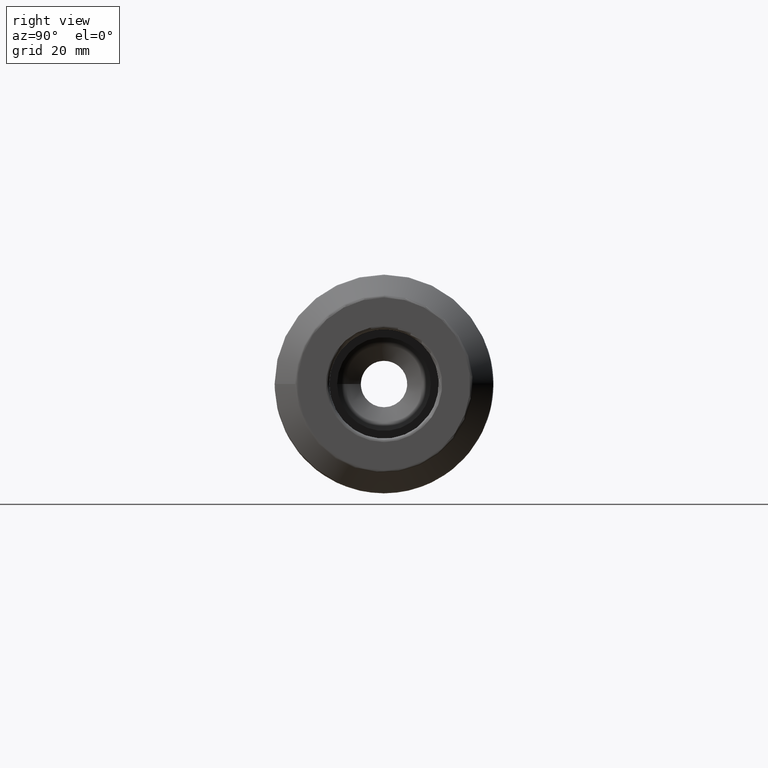
[diagram: clean part render]
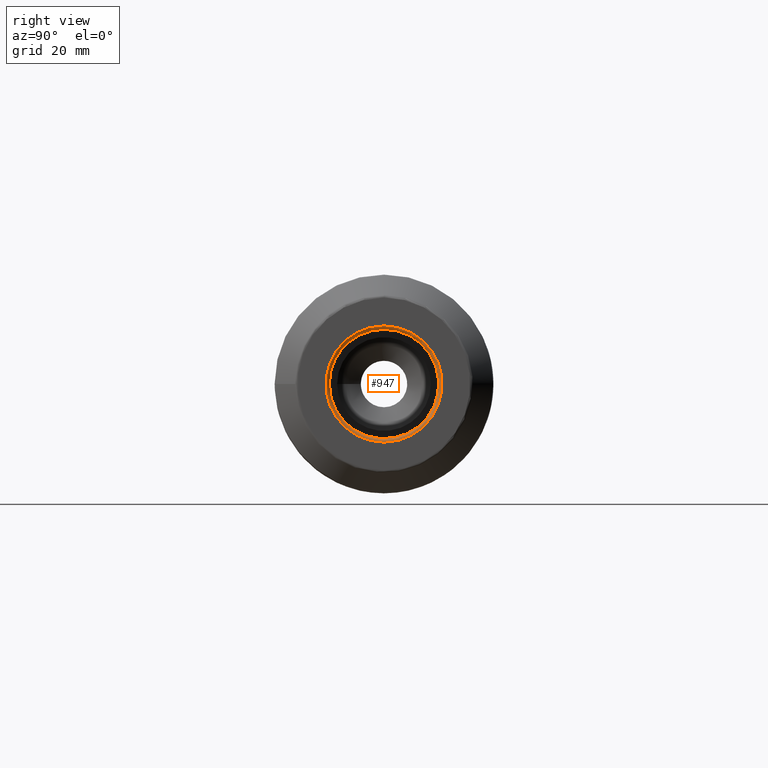
[diagram: same view with one face highlighted and labeled with its STEP entity id]
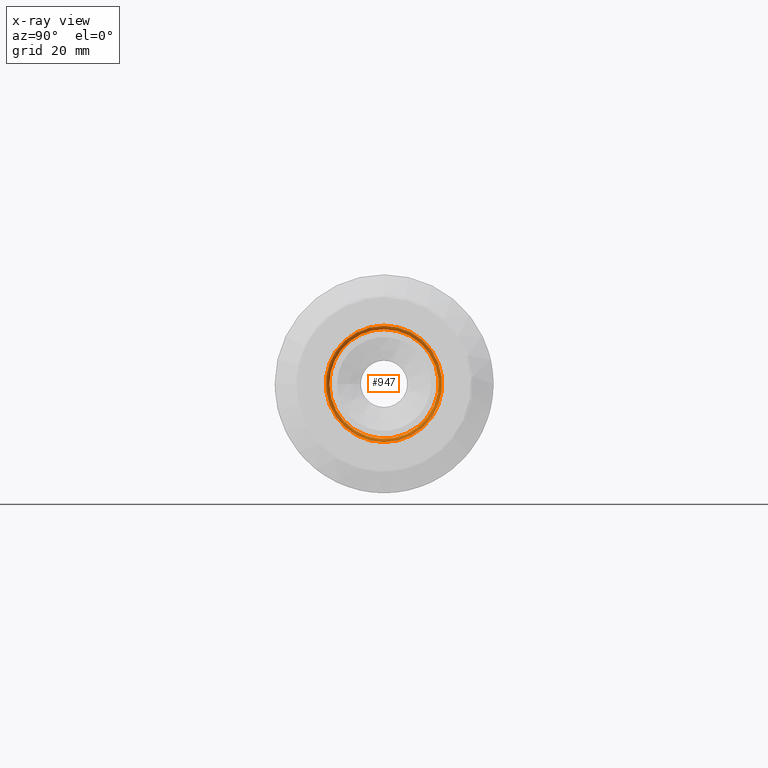
[diagram: x-ray of the same camera — body ghosted, the highlighted face saturated]
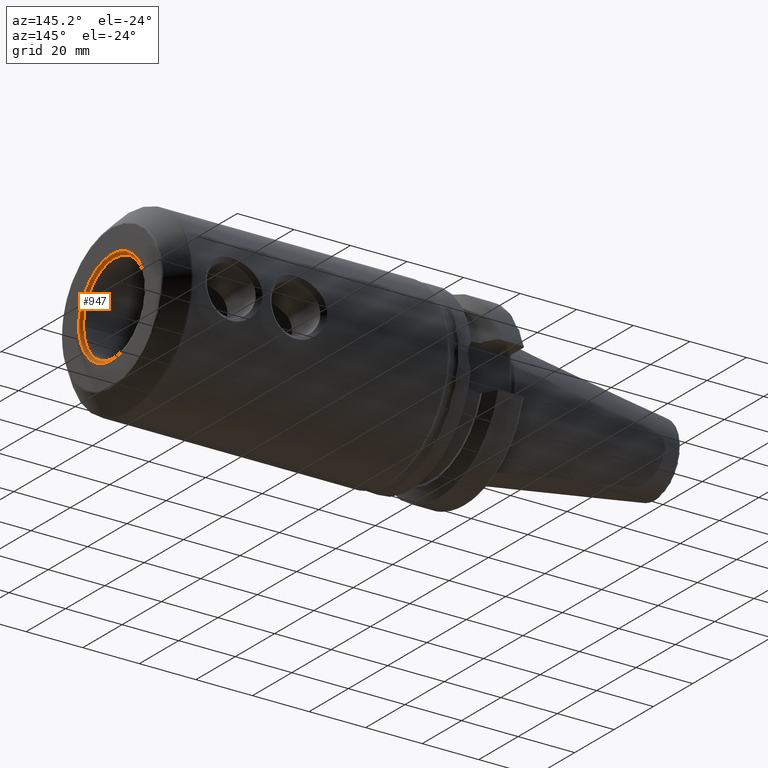
[diagram: same view with one face highlighted and labeled with its STEP entity id]
A machine part, right view. The second image highlights one B-rep face of the part: STEP entity #947.
The next image is the same camera in x-ray: the body ghosted, the highlighted face saturated — about 0% of this face is hidden behind the body in this view.
A second angle (auxiliary view) of the same face is appended — the face is thin or edge-on in the first view.
In plain terms, the highlighted toroidal blend (fillet) surface has major radius 16.875 mm and minor (blend) radius 1 mm.
Its self-contained STEP definition (entity closure, byte-faithful):
#198=FACE_OUTER_BOUND('',#256,.T.);
#256=EDGE_LOOP('',(#639,#640,#641,#642,#643));
#324=CIRCLE('',#1029,15.875);
#325=CIRCLE('',#1030,15.875);
#326=CIRCLE('',#1031,1.);
#327=CIRCLE('',#1032,16.875);
#395=VERTEX_POINT('',#1463);
#396=VERTEX_POINT('',#1464);
#397=VERTEX_POINT('',#1467);
#491=EDGE_CURVE('',#395,#396,#324,.T.);
#492=EDGE_CURVE('',#396,#395,#325,.T.);
#493=EDGE_CURVE('',#395,#397,#326,.T.);
#494=EDGE_CURVE('',#397,#397,#327,.T.);
#639=ORIENTED_EDGE('',*,*,#491,.T.);
#640=ORIENTED_EDGE('',*,*,#492,.T.);
#641=ORIENTED_EDGE('',*,*,#493,.T.);
#642=ORIENTED_EDGE('',*,*,#494,.T.);
#643=ORIENTED_EDGE('',*,*,#493,.F.);
#935=TOROIDAL_SURFACE('',#1028,16.875,1.);
#947=ADVANCED_FACE('',(#198),#935,.T.);
#1028=AXIS2_PLACEMENT_3D('',#1462,#1157,#1158);
#1029=AXIS2_PLACEMENT_3D('',#1465,#1159,#1160);
#1030=AXIS2_PLACEMENT_3D('',#1466,#1161,#1162);
#1031=AXIS2_PLACEMENT_3D('',#1468,#1163,#1164);
#1032=AXIS2_PLACEMENT_3D('',#1469,#1165,#1166);
#1157=DIRECTION('center_axis',(1.,0.,0.));
#1158=DIRECTION('ref_axis',(0.,0.,-1.));
#1159=DIRECTION('center_axis',(-1.,0.,0.));
#1160=DIRECTION('ref_axis',(0.,-1.,1.83697019872103E-16));
#1161=DIRECTION('center_axis',(-1.,0.,0.));
#1162=DIRECTION('ref_axis',(0.,-1.,1.83697019872103E-16));
#1163=DIRECTION('center_axis',(0.,-1.,-1.22464679914735E-16));
#1164=DIRECTION('ref_axis',(0.,-1.22464679914735E-16,1.));
#1165=DIRECTION('center_axis',(1.,0.,0.));
#1166=DIRECTION('ref_axis',(0.,-1.,1.83697019872103E-16));
#1462=CARTESIAN_POINT('Origin',(126.,0.,0.));
#1463=CARTESIAN_POINT('',(126.,-1.94412679364643E-15,15.875));
#1464=CARTESIAN_POINT('',(126.,-15.875,-1.94412679364643E-15));
#1465=CARTESIAN_POINT('Origin',(126.,0.,0.));
#1466=CARTESIAN_POINT('Origin',(126.,0.,0.));
#1467=CARTESIAN_POINT('',(127.,-2.06659147356116E-15,16.875));
#1468=CARTESIAN_POINT('Origin',(126.,-2.06659147356116E-15,16.875));
#1469=CARTESIAN_POINT('Origin',(127.,0.,0.));